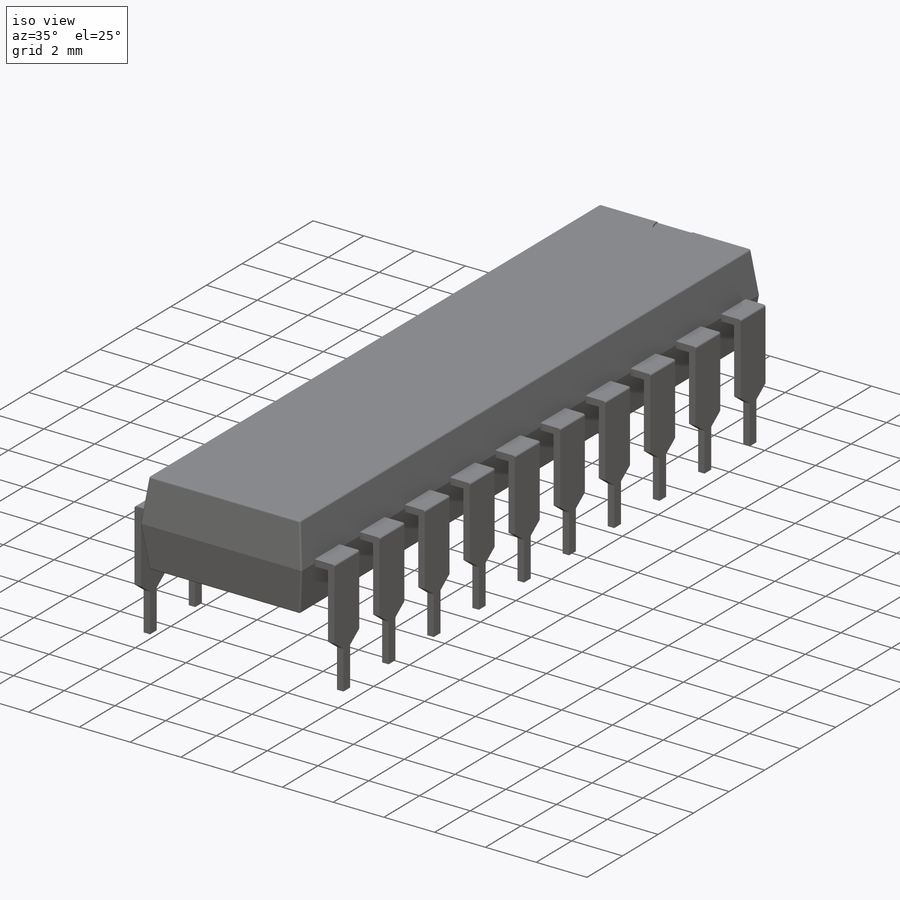
[diagram: iso view]
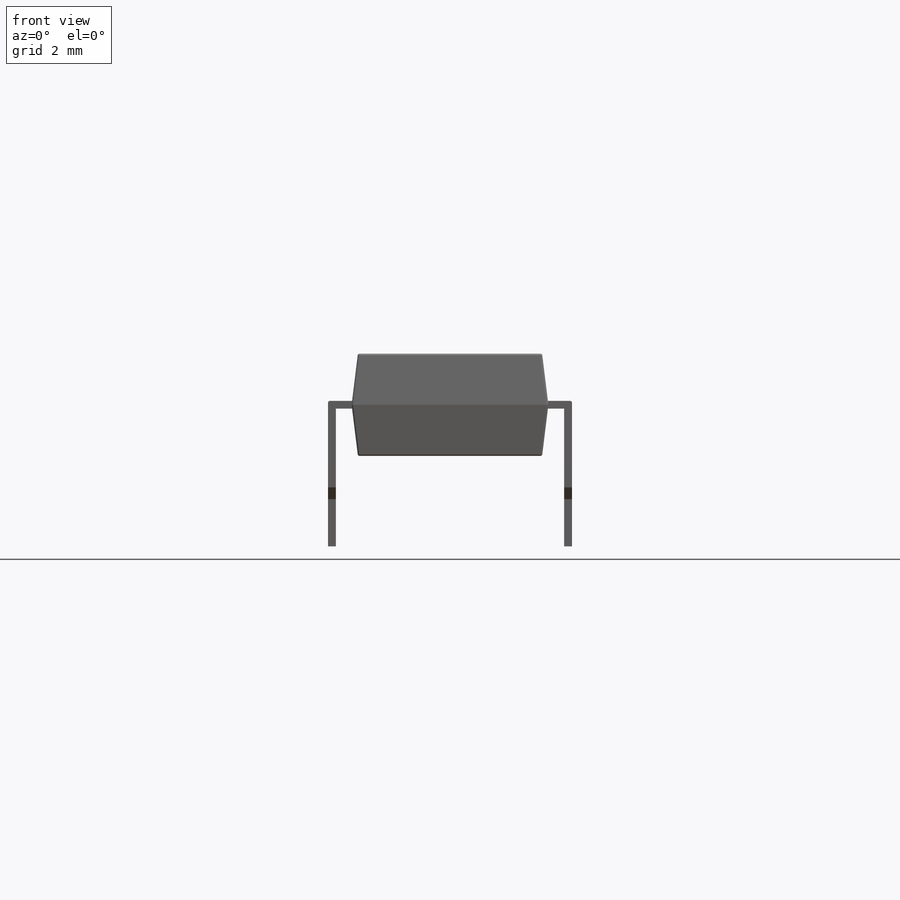
[diagram: front view]
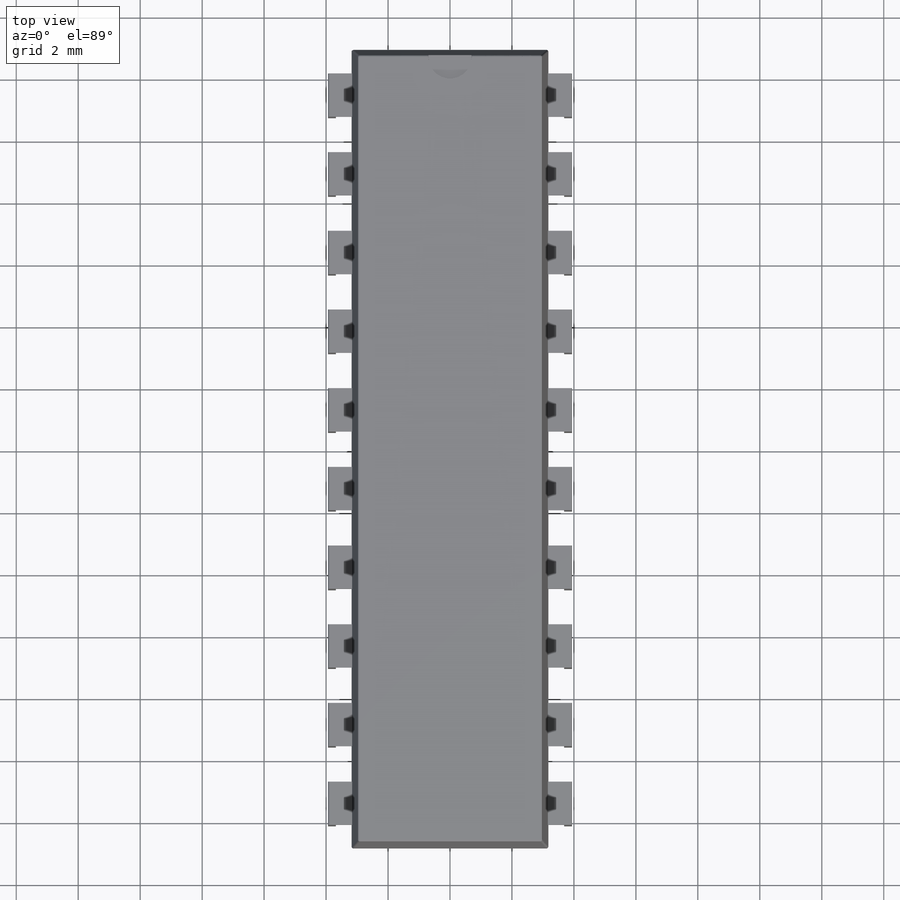
[diagram: top view]
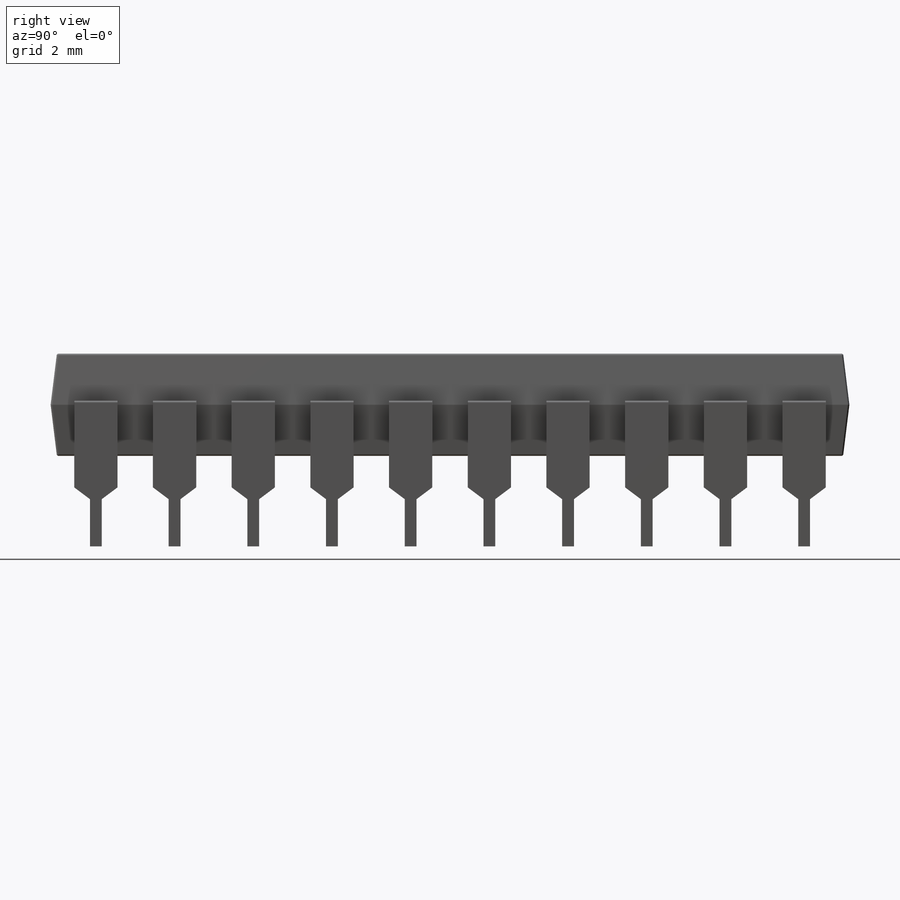
[diagram: right view]
SOLIDWORKS PART (.sldprt)
format: sldprt  version: not decoded by parser v0  size: 454,144 bytes
history: native  units: mm
features: sketch x5, extrude x3, fillet x3, plane x2, cut_extrude x2, material x1, pattern_linear x1, mirror x1 (+17 scaffold rows collapsed)
feature tree (35):
  scaffold x17  (default folders/planes/origin — collapsed)
  material  "Material <not specified>"
  sketch  "Sketch1"  dims[D1=6.35mm D2=25.781mm]
  extrude  "Extrude1"  Depth=3.302mm
  plane  "Plane1"  Offset=1.27mm
  sketch  "Sketch2"  dims[D1=3.81mm D2=1.27mm D3=1.397mm D4=3.937mm D5=0.381mm]
  extrude  "Extrude6"  Depth=0.254mm
  sketch  "Sketch7"  dims[D1=0.254mm]
  extrude  "Extrude7"  Depth=4.699mm
  plane  "Plane2"  Offset=0mm
  fillet  "Fillet2"  Radius=0.0635mm
  sketch  "Sketch6"  dims[D1=1.397mm]
  cut_extrude  "Cut-Extrude2"  [1 undecoded]
  sketch  "Sketch8"  dims[D1=0.1905mm D2=4.318mm D3=0.381mm]
  cut_extrude  "Cut-Extrude3"  [1 undecoded]
  pattern_linear  "LPattern8"  Count1=5 Count2=6 Spacing1=2.54mm Spacing2=2.54mm
  fillet  "Fillet6"  Radius=0.0635mm
  mirror  "Mirror1"
  fillet  "Fillet7"  Radius=0.0635mm
decode coverage: 12 of 15 modeling features carry decoded parameters
note: 2 parameter values undecoded
note: suppression state not decoded; provenance and decode notes live in map.json
